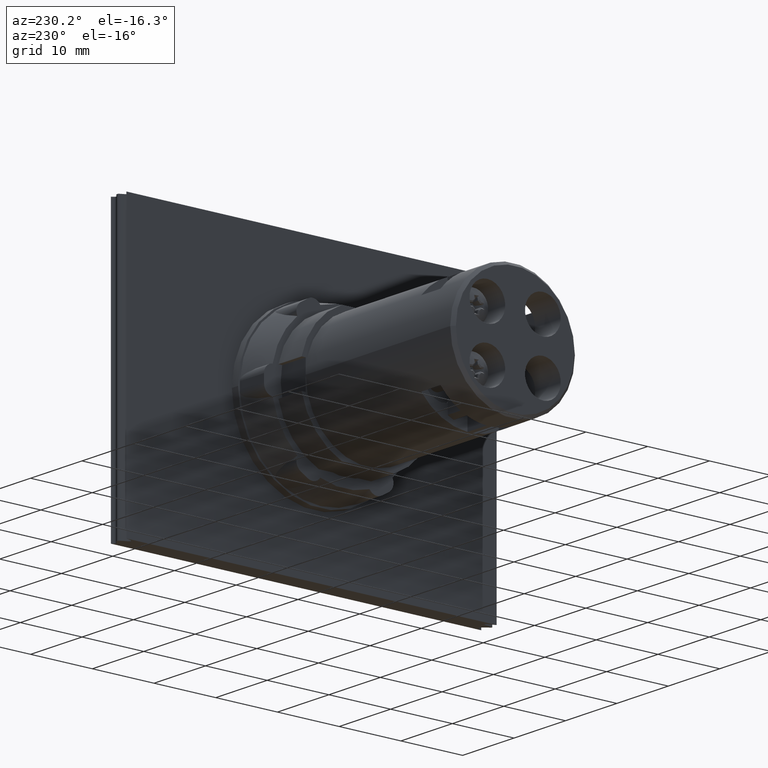
[diagram: clean part render]
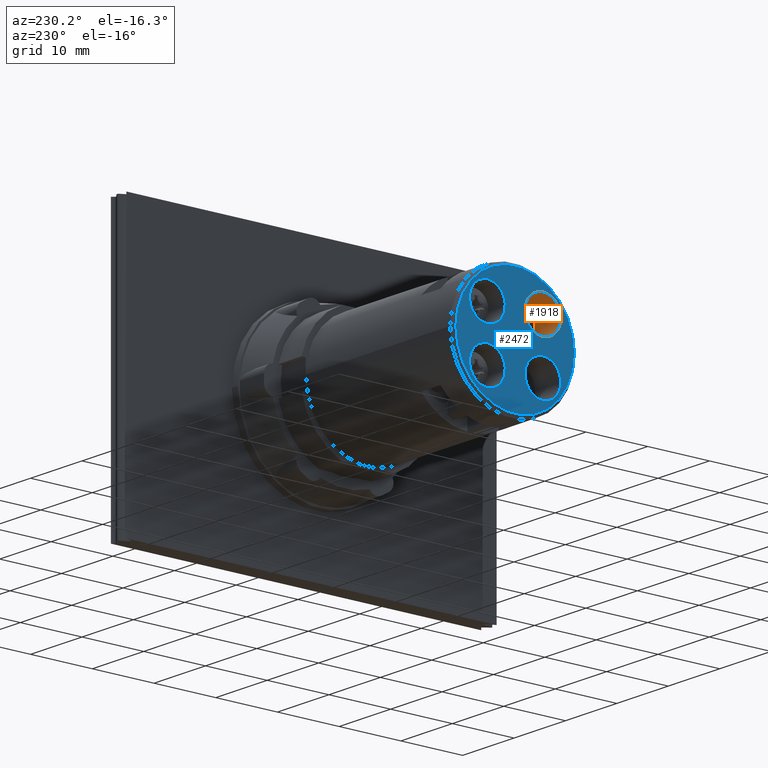
[diagram: same view with the hole feature highlighted: cylindrical wall and planar end face, labeled with their STEP entity ids]
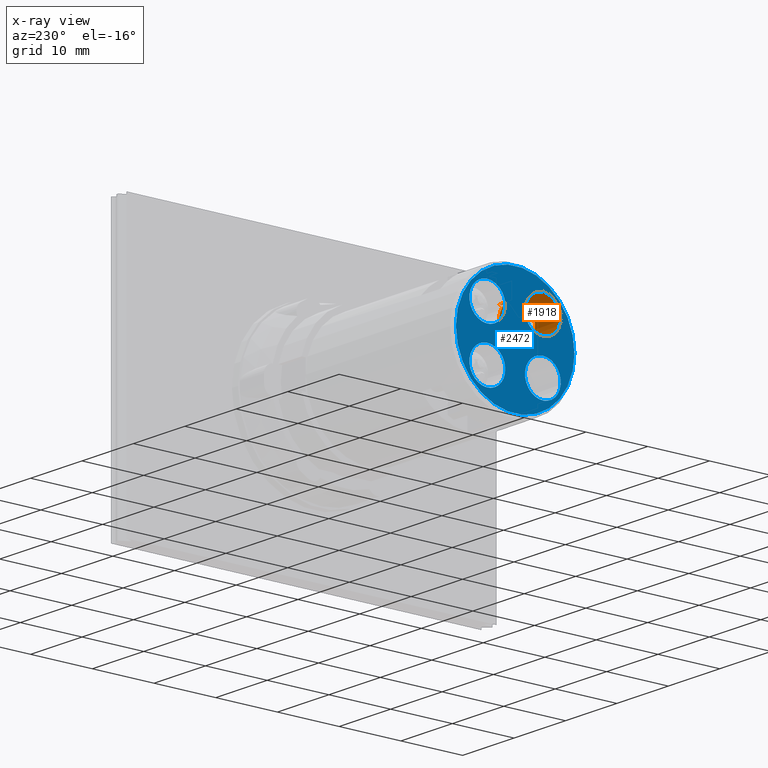
[diagram: x-ray of the same camera — body ghosted, the hole faces saturated]
A machine part, auxiliary view. The highlighted faces form one hole feature of diameter 5.8 mm: the cylindrical wall (entity #1918, orange) and its adjacent planar end face (entity #2472, blue) — they share a circular edge in the B-rep.
The next image is the same camera in x-ray (body ghosted, the hole faces saturated) — the bore reads through the body.
Wall:
#964=CARTESIAN_POINT('',(-35.622597079042578,-2.870817261852104,6.913427934801034));
#965=VERTEX_POINT('',#964);
#966=CARTESIAN_POINT('',(-35.622597079042578,-3.870817261852104,7.047494145443900));
#967=VERTEX_POINT('',#966);
#968=CARTESIAN_POINT('',(-35.622597079042578,-3.750286447873589,4.150000000000000));
#969=DIRECTION('',(1.0,0.0,0.0));
#970=DIRECTION('',(0.0,0.0,-1.0));
#971=AXIS2_PLACEMENT_3D('',#968,#969,#970);
#972=CIRCLE('',#971,2.900000000000000);
#973=EDGE_CURVE('',#965,#967,#972,.T.);
#1006=CARTESIAN_POINT('',(-38.122597079042578,-3.870817261852102,7.047494145443900));
#1007=VERTEX_POINT('',#1006);
#1008=CARTESIAN_POINT('',(-35.622597079042578,-3.870817261852104,7.047494145443900));
#1009=DIRECTION('',(-1.0,0.0,0.0));
#1010=VECTOR('',#1009,2.500000000000000);
#1011=LINE('',#1008,#1010);
#1012=EDGE_CURVE('',#967,#1007,#1011,.T.);
#1037=CARTESIAN_POINT('',(-38.122597079042571,-2.870817261852103,6.913427934801034));
#1038=VERTEX_POINT('',#1037);
#1039=CARTESIAN_POINT('',(-38.122597079042571,-2.870817261852103,6.913427934801034));
#1040=DIRECTION('',(1.0,0.0,0.0));
#1041=VECTOR('',#1040,2.499999999999993);
#1042=LINE('',#1039,#1041);
#1043=EDGE_CURVE('',#1038,#965,#1042,.T.);
#1068=CARTESIAN_POINT('',(-38.122597079042571,-2.870817261852107,1.386572065198966));
#1069=VERTEX_POINT('',#1068);
#1070=CARTESIAN_POINT('',(-38.122597079042571,-3.750286447873589,4.150000000000000));
#1071=DIRECTION('',(1.0,0.0,0.0));
#1072=DIRECTION('',(0.0,0.0,-1.0));
#1073=AXIS2_PLACEMENT_3D('',#1070,#1071,#1072);
#1074=CIRCLE('',#1073,2.900000000000000);
#1075=EDGE_CURVE('',#1069,#1038,#1074,.T.);
#1156=CARTESIAN_POINT('',(-38.122597079042578,-3.870817261852106,1.252505854556100));
#1157=VERTEX_POINT('',#1156);
#1158=CARTESIAN_POINT('',(-38.122597079042578,-3.750286447873589,4.150000000000000));
#1159=DIRECTION('',(1.0,0.0,0.0));
#1160=DIRECTION('',(0.0,0.0,-1.0));
#1161=AXIS2_PLACEMENT_3D('',#1158,#1159,#1160);
#1162=CIRCLE('',#1161,2.900000000000000);
#1163=EDGE_CURVE('',#1007,#1157,#1162,.T.);
#1205=CARTESIAN_POINT('',(-35.622597079042578,-3.870817261852107,1.252505854556101));
#1206=VERTEX_POINT('',#1205);
#1207=CARTESIAN_POINT('',(-38.122597079042578,-3.870817261852106,1.252505854556100));
#1208=DIRECTION('',(1.0,0.0,0.0));
#1209=VECTOR('',#1208,2.500000000000000);
#1210=LINE('',#1207,#1209);
#1211=EDGE_CURVE('',#1157,#1206,#1210,.T.);
#1236=CARTESIAN_POINT('',(-35.622597079042578,-2.870817261852107,1.386572065198966));
#1237=VERTEX_POINT('',#1236);
#1238=CARTESIAN_POINT('',(-35.622597079042578,-3.750286447873589,4.150000000000000));
#1239=DIRECTION('',(1.0,0.0,0.0));
#1240=DIRECTION('',(0.0,0.0,-1.0));
#1241=AXIS2_PLACEMENT_3D('',#1238,#1239,#1240);
#1242=CIRCLE('',#1241,2.900000000000000);
#1243=EDGE_CURVE('',#1206,#1237,#1242,.T.);
#1268=CARTESIAN_POINT('',(-35.622597079042578,-2.870817261852107,1.386572065198966));
#1269=DIRECTION('',(-1.0,0.0,0.0));
#1270=VECTOR('',#1269,2.499999999999993);
#1271=LINE('',#1268,#1270);
#1272=EDGE_CURVE('',#1237,#1069,#1271,.T.);
#1892=CARTESIAN_POINT('',(-43.122597079042571,-3.750286447873589,4.150000000000000));
#1893=DIRECTION('',(1.0,0.0,0.0));
#1894=DIRECTION('',(0.0,0.0,-1.0));
#1895=AXIS2_PLACEMENT_3D('',#1892,#1893,#1894);
#1896=CYLINDRICAL_SURFACE('',#1895,2.900000000000000);
#1897=ORIENTED_EDGE('',*,*,#1163,.T.);
#1898=ORIENTED_EDGE('',*,*,#1211,.T.);
#1899=ORIENTED_EDGE('',*,*,#1243,.T.);
#1900=ORIENTED_EDGE('',*,*,#1272,.T.);
#1901=ORIENTED_EDGE('',*,*,#1075,.T.);
#1902=ORIENTED_EDGE('',*,*,#1043,.T.);
#1903=ORIENTED_EDGE('',*,*,#973,.T.);
#1904=ORIENTED_EDGE('',*,*,#1012,.T.);
#1905=EDGE_LOOP('',(#1897,#1898,#1899,#1900,#1901,#1902,#1903,#1904));
#1906=FACE_OUTER_BOUND('',#1905,.T.);
#1907=CARTESIAN_POINT('',(-43.122597079042571,-3.750286447873589,7.050000000000001));
#1908=VERTEX_POINT('',#1907);
#1909=CARTESIAN_POINT('',(-43.122597079042571,-3.750286447873589,4.150000000000000));
#1910=DIRECTION('',(1.0,0.0,0.0));
#1911=DIRECTION('',(0.0,0.0,-1.0));
#1912=AXIS2_PLACEMENT_3D('',#1909,#1910,#1911);
#1913=CIRCLE('',#1912,2.900000000000000);
#1914=EDGE_CURVE('',#1908,#1908,#1913,.T.);
#1915=ORIENTED_EDGE('',*,*,#1914,.F.);
#1916=EDGE_LOOP('',(#1915));
#1917=FACE_BOUND('',#1916,.T.);
#1918=ADVANCED_FACE('',(#1906,#1917),#1896,.F.);
End face:
#910=CARTESIAN_POINT('',(-43.122597079042571,5.249713552126410,-1.250000000000000));
#911=VERTEX_POINT('',#910);
#912=CARTESIAN_POINT('',(-43.122597079042571,5.249713552126410,-4.150000000000000));
#913=DIRECTION('',(1.0,0.0,0.0));
#914=DIRECTION('',(0.0,0.0,-1.0));
#915=AXIS2_PLACEMENT_3D('',#912,#913,#914);
#916=CIRCLE('',#915,2.900000000000000);
#917=EDGE_CURVE('',#911,#911,#916,.T.);
#937=CARTESIAN_POINT('',(-43.122597079042571,-3.750286447873589,-1.250000000000000));
#938=VERTEX_POINT('',#937);
#939=CARTESIAN_POINT('',(-43.122597079042571,-3.750286447873589,-4.150000000000000));
#940=DIRECTION('',(1.0,0.0,0.0));
#941=DIRECTION('',(0.0,0.0,-1.0));
#942=AXIS2_PLACEMENT_3D('',#939,#940,#941);
#943=CIRCLE('',#942,2.900000000000000);
#944=EDGE_CURVE('',#938,#938,#943,.T.);
#1907=CARTESIAN_POINT('',(-43.122597079042571,-3.750286447873589,7.050000000000001));
#1908=VERTEX_POINT('',#1907);
#1909=CARTESIAN_POINT('',(-43.122597079042571,-3.750286447873589,4.150000000000000));
#1910=DIRECTION('',(1.0,0.0,0.0));
#1911=DIRECTION('',(0.0,0.0,-1.0));
#1912=AXIS2_PLACEMENT_3D('',#1909,#1910,#1911);
#1913=CIRCLE('',#1912,2.900000000000000);
#1914=EDGE_CURVE('',#1908,#1908,#1913,.T.);
#1943=CARTESIAN_POINT('',(-43.122597079042571,5.249713552126410,7.050000000000001));
#1944=VERTEX_POINT('',#1943);
#1945=CARTESIAN_POINT('',(-43.122597079042571,5.249713552126410,4.150000000000000));
#1946=DIRECTION('',(1.0,0.0,0.0));
#1947=DIRECTION('',(0.0,0.0,-1.0));
#1948=AXIS2_PLACEMENT_3D('',#1945,#1946,#1947);
#1949=CIRCLE('',#1948,2.900000000000000);
#1950=EDGE_CURVE('',#1944,#1944,#1949,.T.);
#2429=CARTESIAN_POINT('',(-43.122597079042571,10.349713552126406,1.175622E-015));
#2430=VERTEX_POINT('',#2429);
#2431=CARTESIAN_POINT('',(-43.122597079042571,0.749713552126411,0.0));
#2432=DIRECTION('',(1.0,0.0,0.0));
#2433=DIRECTION('',(0.0,-1.0,0.0));
#2434=AXIS2_PLACEMENT_3D('',#2431,#2432,#2433);
#2435=CIRCLE('',#2434,9.599999999999998);
#2436=EDGE_CURVE('',#2430,#2430,#2435,.T.);
#2452=CARTESIAN_POINT('',(-43.122597079042571,5.799713552126409,0.0));
#2453=DIRECTION('',(-1.0,0.0,0.0));
#2454=DIRECTION('',(0.0,0.0,1.0));
#2455=AXIS2_PLACEMENT_3D('',#2452,#2453,#2454);
#2456=PLANE('',#2455);
#2457=ORIENTED_EDGE('',*,*,#2436,.F.);
#2458=EDGE_LOOP('',(#2457));
#2459=FACE_OUTER_BOUND('',#2458,.T.);
#2460=ORIENTED_EDGE('',*,*,#944,.T.);
#2461=EDGE_LOOP('',(#2460));
#2462=FACE_BOUND('',#2461,.T.);
#2463=ORIENTED_EDGE('',*,*,#1914,.T.);
#2464=EDGE_LOOP('',(#2463));
#2465=FACE_BOUND('',#2464,.T.);
#2466=ORIENTED_EDGE('',*,*,#1950,.T.);
#2467=EDGE_LOOP('',(#2466));
#2468=FACE_BOUND('',#2467,.T.);
#2469=ORIENTED_EDGE('',*,*,#917,.T.);
#2470=EDGE_LOOP('',(#2469));
#2471=FACE_BOUND('',#2470,.T.);
#2472=ADVANCED_FACE('',(#2459,#2462,#2465,#2468,#2471),#2456,.T.);